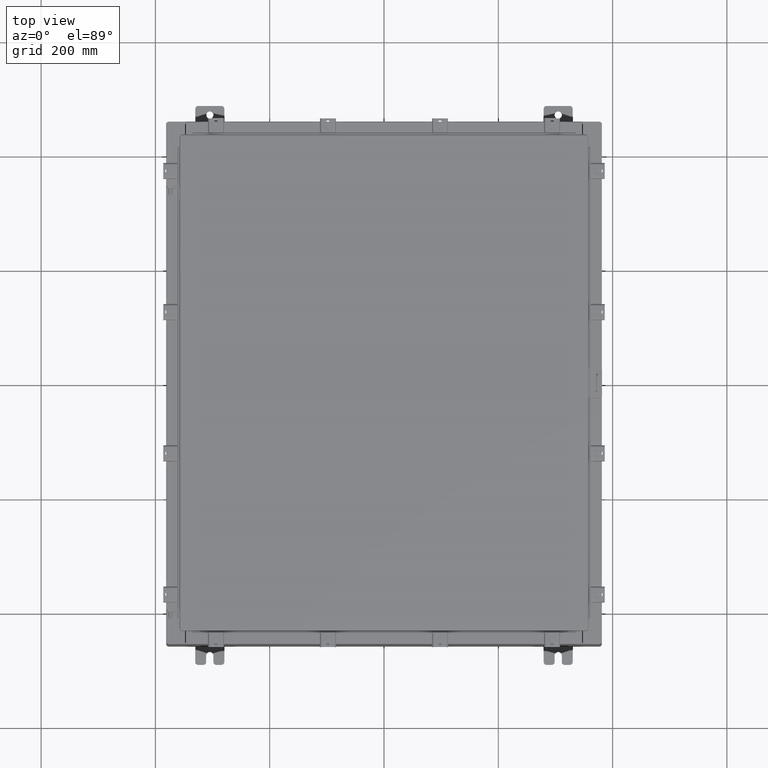
[diagram: clean part render]
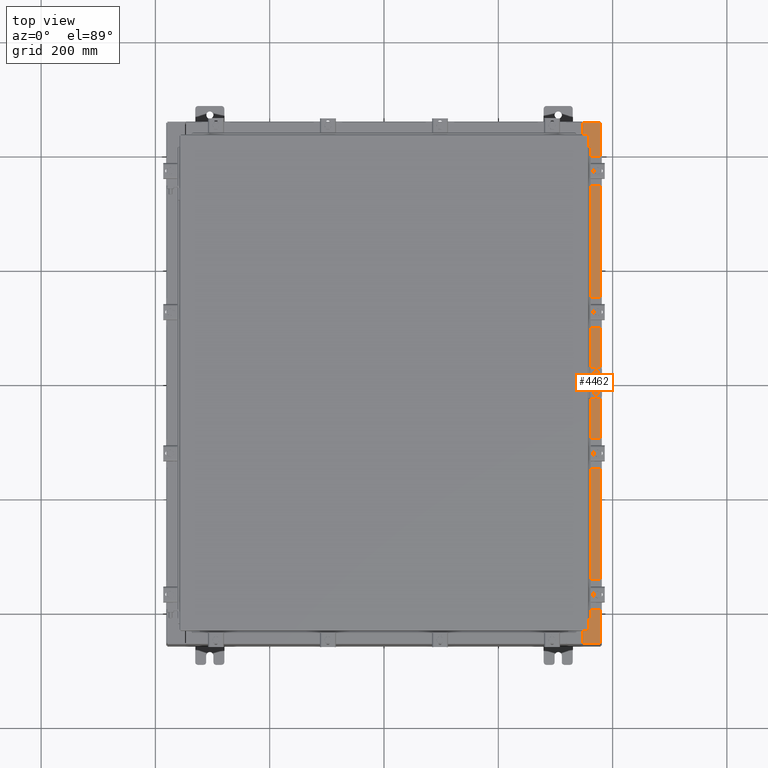
[diagram: same view with one face highlighted and labeled with its STEP entity id]
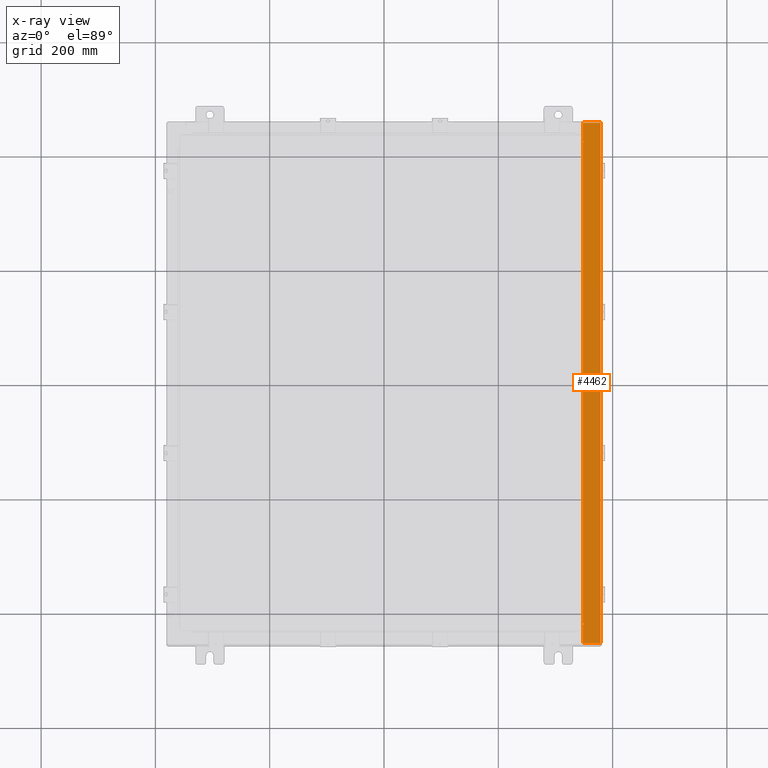
[diagram: x-ray of the same camera — body ghosted, the highlighted face saturated]
A machine part, top view. The second image highlights one B-rep face of the part: STEP entity #4462.
The next image is the same camera in x-ray: the body ghosted, the highlighted face saturated — about 0% of this face is hidden behind the body in this view.
In plain terms, the highlighted planar face has unit normal (-0, 0, -1).
Its self-contained STEP definition (entity closure, byte-faithful):
#77 = ORIENTED_EDGE ( 'NONE', *, *, #6606, .T. ) ;
#99 = LINE ( 'NONE', #23145, #22456 ) ;
#183 = VERTEX_POINT ( 'NONE', #17279 ) ;
#218 = EDGE_CURVE ( 'NONE', #183, #18584, #11211, .T. ) ;
#282 = VERTEX_POINT ( 'NONE', #6368 ) ;
#738 = EDGE_CURVE ( 'NONE', #282, #18982, #2924, .T. ) ;
#809 = VERTEX_POINT ( 'NONE', #6789 ) ;
#1491 = EDGE_CURVE ( 'NONE', #18982, #183, #8239, .T. ) ;
#1744 = VECTOR ( 'NONE', #12713, 39.37007874015748100 ) ;
#1815 = CARTESIAN_POINT ( 'NONE',  ( 13.69970000000003400, -16.63110000000000000, 9.925300000000008900 ) ) ;
#2214 = DIRECTION ( 'NONE',  ( -4.276128853718621600E-031, -1.000000000000000000, 2.287545828266532300E-045 ) ) ;
#2457 = CARTESIAN_POINT ( 'NONE',  ( 13.69970000000003400, -16.63110000000000000, 9.925300000000008900 ) ) ;
#2505 = ORIENTED_EDGE ( 'NONE', *, *, #1491, .F. ) ;
#2601 = VECTOR ( 'NONE', #14979, 39.37007874015748100 ) ;
#2924 = LINE ( 'NONE', #23587, #11777 ) ;
#3023 = CARTESIAN_POINT ( 'NONE',  ( 5.335691853495967900E-014, 0.0000000000000000000, 9.925300000000083500 ) ) ;
#3168 = DIRECTION ( 'NONE',  ( -1.000000000000000000, 0.0000000000000000000, 5.349571789159788500E-015 ) ) ;
#4024 = VECTOR ( 'NONE', #17126, 39.37007874015748100 ) ;
#4131 = CARTESIAN_POINT ( 'NONE',  ( 13.69970000000003400, -5.858168245728892200E-030, 9.925300000000008900 ) ) ;
#4322 = CARTESIAN_POINT ( 'NONE',  ( 13.71270000000003700, -16.59375000000000000, 9.925300000000008900 ) ) ;
#4336 = ORIENTED_EDGE ( 'NONE', *, *, #9411, .T. ) ;
#4462 = ADVANCED_FACE ( 'NONE', ( #5852 ), #12585, .F. ) ;
#4635 = EDGE_CURVE ( 'NONE', #23943, #6865, #12322, .T. ) ;
#5025 = EDGE_CURVE ( 'NONE', #6865, #20078, #9658, .T. ) ;
#5161 = VERTEX_POINT ( 'NONE', #20455 ) ;
#5222 = CARTESIAN_POINT ( 'NONE',  ( 13.71270000000003700, -16.59375000000000000, 9.925300000000008900 ) ) ;
#5423 = VERTEX_POINT ( 'NONE', #19009 ) ;
#5537 = CARTESIAN_POINT ( 'NONE',  ( 13.69970000000003400, 16.63110000000000000, 9.925300000000008900 ) ) ;
#5852 = FACE_OUTER_BOUND ( 'NONE', #21540, .T. ) ;
#6224 = VECTOR ( 'NONE', #15564, 39.37007874015748100 ) ;
#6368 = CARTESIAN_POINT ( 'NONE',  ( 13.71270000000003700, 16.59375000000000000, 9.925300000000008900 ) ) ;
#6606 = EDGE_CURVE ( 'NONE', #5161, #10956, #99, .T. ) ;
#6789 = CARTESIAN_POINT ( 'NONE',  ( 14.91230000000003400, 17.92530000000000000, 9.925300000000001800 ) ) ;
#6865 = VERTEX_POINT ( 'NONE', #14366 ) ;
#7496 = CARTESIAN_POINT ( 'NONE',  ( 13.75005000000003500, 16.61242500000000200, 9.925300000000008900 ) ) ;
#7818 = CARTESIAN_POINT ( 'NONE',  ( 13.75005000000003500, -16.61242500000000200, 9.925300000000008900 ) ) ;
#8083 = DIRECTION ( 'NONE',  ( 1.000000000000000000, 1.087045829762337300E-031, -5.349571789159789300E-015 ) ) ;
#8156 = ORIENTED_EDGE ( 'NONE', *, *, #16453, .F. ) ;
#8239 = CIRCLE ( 'NONE', #21267, 0.01867499999999949400 ) ;
#8638 = CARTESIAN_POINT ( 'NONE',  ( 14.91230000000003400, -17.92530000000000000, 9.925300000000001800 ) ) ;
#9082 = VECTOR ( 'NONE', #14437, 39.37007874015748100 ) ;
#9393 = DIRECTION ( 'NONE',  ( 1.000000000000000000, 0.0000000000000000000, 0.0000000000000000000 ) ) ;
#9411 = EDGE_CURVE ( 'NONE', #809, #5423, #12628, .T. ) ;
#9658 = LINE ( 'NONE', #18155, #9082 ) ;
#9696 = DIRECTION ( 'NONE',  ( 1.000000000000000000, 0.0000000000000000000, 0.0000000000000000000 ) ) ;
#9800 = AXIS2_PLACEMENT_3D ( 'NONE', #7818, #20969, #9696 ) ;
#9903 = ORIENTED_EDGE ( 'NONE', *, *, #16760, .T. ) ;
#9982 = CARTESIAN_POINT ( 'NONE',  ( 13.75005000000003500, 16.63110000000000000, 9.925300000000008900 ) ) ;
#9985 = DIRECTION ( 'NONE',  ( 1.000000000000000000, 0.0000000000000000000, 0.0000000000000000000 ) ) ;
#10354 = LINE ( 'NONE', #12687, #19771 ) ;
#10956 = VERTEX_POINT ( 'NONE', #8638 ) ;
#11211 = LINE ( 'NONE', #9982, #6224 ) ;
#11777 = VECTOR ( 'NONE', #21762, 39.37007874015748100 ) ;
#12270 = ORIENTED_EDGE ( 'NONE', *, *, #13963, .T. ) ;
#12298 = CARTESIAN_POINT ( 'NONE',  ( 13.75005000000003500, -16.63110000000000000, 9.925300000000008900 ) ) ;
#12322 = CIRCLE ( 'NONE', #9800, 0.01867499999999949400 ) ;
#12397 = VERTEX_POINT ( 'NONE', #1815 ) ;
#12585 = PLANE ( 'NONE',  #22897 ) ;
#12628 = LINE ( 'NONE', #24424, #2601 ) ;
#12687 = CARTESIAN_POINT ( 'NONE',  ( 13.69970000000003400, -5.858168245728892200E-030, 9.925300000000008900 ) ) ;
#12713 = DIRECTION ( 'NONE',  ( -0.0000000000000000000, 1.000000000000000000, -0.0000000000000000000 ) ) ;
#13963 = EDGE_CURVE ( 'NONE', #5423, #18584, #10354, .T. ) ;
#14366 = CARTESIAN_POINT ( 'NONE',  ( 13.75005000000003500, -16.59375000000000000, 9.925300000000008900 ) ) ;
#14437 = DIRECTION ( 'NONE',  ( -1.000000000000000000, 0.0000000000000000000, 0.0000000000000000000 ) ) ;
#14468 = DIRECTION ( 'NONE',  ( -5.349571789159788500E-015, 0.0000000000000000000, -1.000000000000000000 ) ) ;
#14562 = DIRECTION ( 'NONE',  ( -4.276128853718621600E-031, -1.000000000000000000, 2.287545828266532300E-045 ) ) ;
#14717 = ORIENTED_EDGE ( 'NONE', *, *, #4635, .F. ) ;
#14979 = DIRECTION ( 'NONE',  ( -1.000000000000000000, 4.861730685829018000E-063, 5.349571789159789300E-015 ) ) ;
#15564 = DIRECTION ( 'NONE',  ( -1.000000000000000000, 0.0000000000000000000, 0.0000000000000000000 ) ) ;
#16094 = VECTOR ( 'NONE', #9985, 39.37007874015748100 ) ;
#16453 = EDGE_CURVE ( 'NONE', #20078, #282, #23035, .T. ) ;
#16760 = EDGE_CURVE ( 'NONE', #12397, #5161, #21529, .T. ) ;
#17126 = DIRECTION ( 'NONE',  ( -0.0000000000000000000, -1.000000000000000000, -0.0000000000000000000 ) ) ;
#17279 = CARTESIAN_POINT ( 'NONE',  ( 13.75005000000003500, 16.63110000000000000, 9.925300000000008900 ) ) ;
#18155 = CARTESIAN_POINT ( 'NONE',  ( 13.75005000000003500, -16.59375000000000000, 9.925300000000008900 ) ) ;
#18459 = LINE ( 'NONE', #20938, #4024 ) ;
#18584 = VERTEX_POINT ( 'NONE', #5537 ) ;
#18982 = VERTEX_POINT ( 'NONE', #24169 ) ;
#19009 = CARTESIAN_POINT ( 'NONE',  ( 13.69970000000003400, 17.92530000000000000, 9.925300000000008900 ) ) ;
#19771 = VECTOR ( 'NONE', #14562, 39.37007874015748100 ) ;
#20078 = VERTEX_POINT ( 'NONE', #4322 ) ;
#20339 = VECTOR ( 'NONE', #2214, 39.37007874015748100 ) ;
#20455 = CARTESIAN_POINT ( 'NONE',  ( 13.69970000000003400, -17.92530000000000000, 9.925300000000008900 ) ) ;
#20461 = EDGE_CURVE ( 'NONE', #809, #10956, #18459, .T. ) ;
#20603 = EDGE_CURVE ( 'NONE', #12397, #23943, #21727, .T. ) ;
#20654 = DIRECTION ( 'NONE',  ( 5.349571789159788500E-015, 0.0000000000000000000, 1.000000000000000000 ) ) ;
#20938 = CARTESIAN_POINT ( 'NONE',  ( 14.91230000000003400, -17.92530000000000000, 9.925300000000001800 ) ) ;
#20969 = DIRECTION ( 'NONE',  ( 5.349571789159788500E-015, 0.0000000000000000000, 1.000000000000000000 ) ) ;
#21119 = ORIENTED_EDGE ( 'NONE', *, *, #5025, .F. ) ;
#21249 = ORIENTED_EDGE ( 'NONE', *, *, #218, .F. ) ;
#21267 = AXIS2_PLACEMENT_3D ( 'NONE', #7496, #20654, #9393 ) ;
#21529 = LINE ( 'NONE', #4131, #20339 ) ;
#21540 = EDGE_LOOP ( 'NONE', ( #21955, #9903, #77, #22945, #4336, #12270, #21249, #2505, #23960, #8156, #21119, #14717 ) ) ;
#21727 = LINE ( 'NONE', #2457, #16094 ) ;
#21762 = DIRECTION ( 'NONE',  ( 1.000000000000000000, 0.0000000000000000000, 0.0000000000000000000 ) ) ;
#21955 = ORIENTED_EDGE ( 'NONE', *, *, #20603, .F. ) ;
#22456 = VECTOR ( 'NONE', #8083, 39.37007874015748100 ) ;
#22897 = AXIS2_PLACEMENT_3D ( 'NONE', #3023, #14468, #3168 ) ;
#22945 = ORIENTED_EDGE ( 'NONE', *, *, #20461, .F. ) ;
#23035 = LINE ( 'NONE', #5222, #1744 ) ;
#23145 = CARTESIAN_POINT ( 'NONE',  ( 5.335691853495967900E-014, -17.92530000000000000, 9.925300000000083500 ) ) ;
#23587 = CARTESIAN_POINT ( 'NONE',  ( 13.71270000000003700, 16.59375000000000000, 9.925300000000008900 ) ) ;
#23943 = VERTEX_POINT ( 'NONE', #12298 ) ;
#23960 = ORIENTED_EDGE ( 'NONE', *, *, #738, .F. ) ;
#24169 = CARTESIAN_POINT ( 'NONE',  ( 13.75005000000003500, 16.59375000000000000, 9.925300000000008900 ) ) ;
#24424 = CARTESIAN_POINT ( 'NONE',  ( 5.335691853495967900E-014, 17.92530000000000000, 9.925300000000083500 ) ) ;